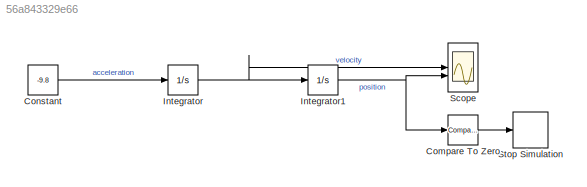
MODEL slx_56a843329e66
KIND model
CONFIG AbsTol = auto
CONFIG EnableMultiTasking = off
CONFIG FixedStep = auto
CONFIG MaxStep = 1e-3
CONFIG MinStep = auto
CONFIG RelTol = 1e-3
CONFIG SampleTimeConstraint = Unconstrained
CONFIG SolverName = VariableStepAuto
CONFIG StartTime = 0.0
CONFIG StopTime = 10.0
BLOCK [Reference] Compare To Zero  REF=simulink/Logic and Bit
Operations/Compare
To Zero
  SourceBlock = simulink/Logic and Bit\nOperations/Compare\nTo Zero
  SourceType = Compare To Zero
BLOCK [Constant] Constant
  Value = -9.8
BLOCK [Integrator] Integrator
  InitialCondition = 0.5
BLOCK [Integrator] Integrator1
  InitialCondition = 1
BLOCK [Scope] Scope
  Floating = off
  NumInputPorts = 2
  ScopeSpecificationString = Simulink.scopes.TimeScopeBlockCfg('CurrentConfiguration', extmgr.ConfigurationSet(extmgr.Configuration('Core','General UI',true),extmgr.Configuration('Core','Source UI',true),extmgr.Configuration('Sources','WiredSimulink',true),extmgr.Configuration('Visuals','Time Domain',true,'SerializedDisplays',{struct('MinYLimReal','-5.07475','MaxYLimReal','1.11942','YLabelReal','','MinYLimMag','0.00000','MaxY...<+2225ch>
BLOCK [Stop] Stop Simulation
LINE Compare To Zero:1 -> Stop Simulation:1
LINE Constant:1 -> Integrator:1
NET Integrator1:1 -> Compare To Zero:1, Scope:2
NET Integrator:1 -> Integrator1:1, Scope:1
note: NET lines group one-source signal fan-out (src -> all destinations, sorted); 1:1 wires keep LINE
